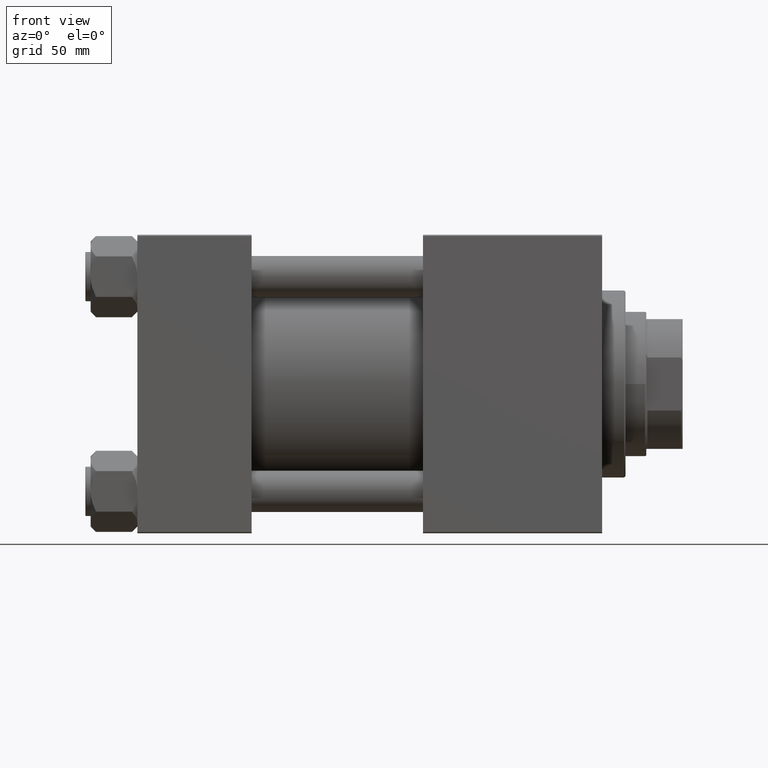
[diagram: clean part render]
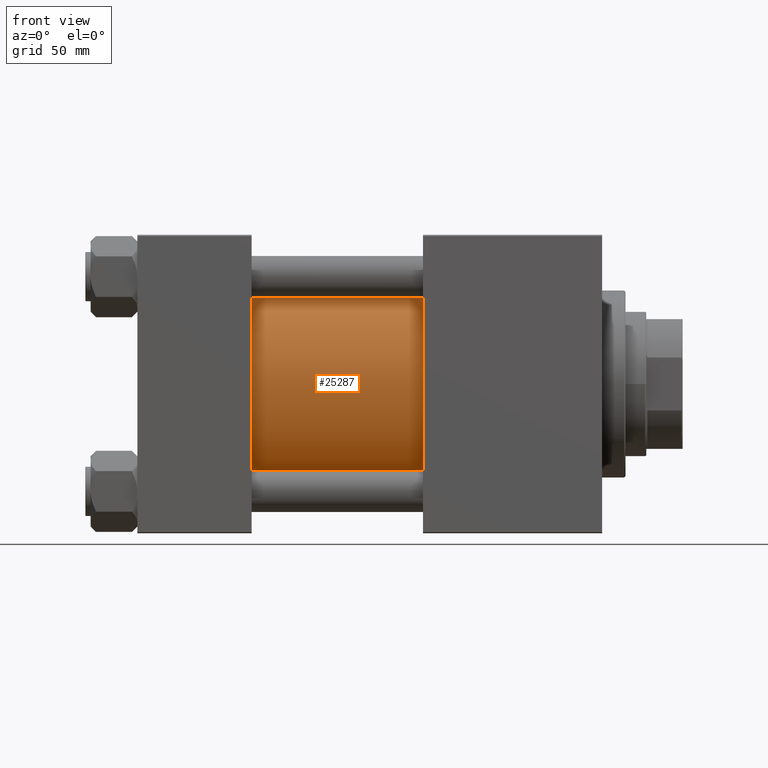
[diagram: same view with one face highlighted and labeled with its STEP entity id]
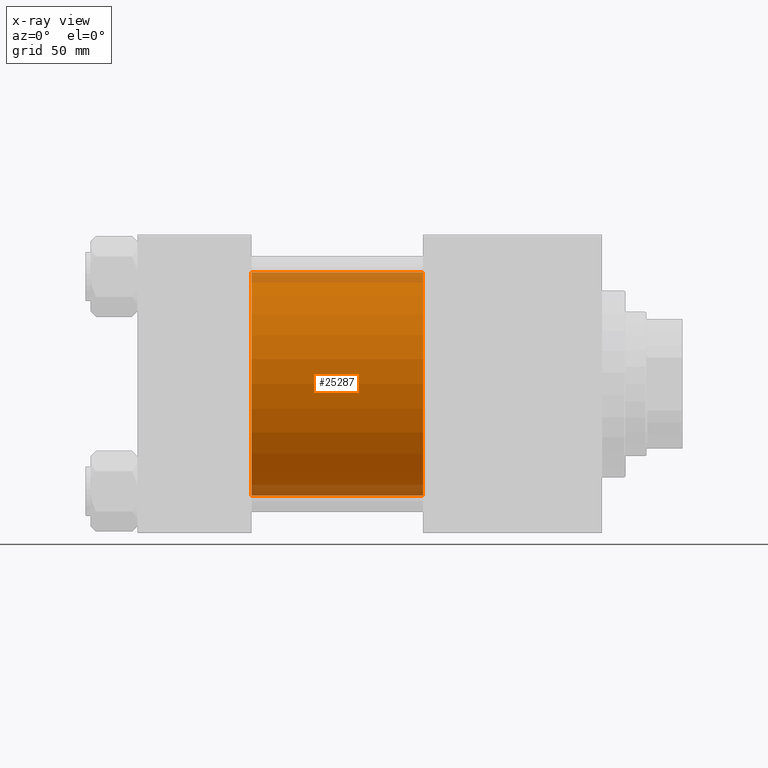
[diagram: x-ray of the same camera — body ghosted, the highlighted face saturated]
A machine part, front view. The second image highlights one B-rep face of the part: STEP entity #25287.
The next image is the same camera in x-ray: the body ghosted, the highlighted face saturated — about 9% of this face is hidden behind the body in this view.
In plain terms, the highlighted cylindrical surface (partial cylindrical patch) has radius 43 mm, axis along (-1, -0, -0).
Its self-contained STEP definition (entity closure, byte-faithful):
#463 = VECTOR ( 'NONE', #21333, 1000.000000000000000 ) ;
#1511 = FACE_OUTER_BOUND ( 'NONE', #27128, .T. ) ;
#2173 = CARTESIAN_POINT ( 'NONE',  ( 44.00000000000000000, -2.602085213965210642E-15, 0.000000000000000000 ) ) ;
#4994 = EDGE_CURVE ( 'NONE', #48497, #43066, #48688, .T. ) ;
#5921 = CARTESIAN_POINT ( 'NONE',  ( 110.0000000000000000, 2.663896022368408223E-15, -43.00000000000000000 ) ) ;
#6276 = CARTESIAN_POINT ( 'NONE',  ( 44.00000000000000000, -2.602085213965210642E-15, 43.00000000000000000 ) ) ;
#7281 = VERTEX_POINT ( 'NONE', #18743 ) ;
#7293 = CARTESIAN_POINT ( 'NONE',  ( 110.0000000000000000, -2.602085213965210642E-15, 43.00000000000000000 ) ) ;
#9436 = CYLINDRICAL_SURFACE ( 'NONE', #9522, 43.00000000000000000 ) ;
#9522 = AXIS2_PLACEMENT_3D ( 'NONE', #22010, #44779, #17144 ) ;
#9857 = DIRECTION ( 'NONE',  ( 1.000000000000000000, -0.000000000000000000, 0.000000000000000000 ) ) ;
#11079 = AXIS2_PLACEMENT_3D ( 'NONE', #2173, #9857, #41864 ) ;
#16137 = DIRECTION ( 'NONE',  ( 1.000000000000000000, 0.000000000000000000, 0.000000000000000000 ) ) ;
#16735 = ORIENTED_EDGE ( 'NONE', *, *, #35782, .F. ) ;
#17097 = CIRCLE ( 'NONE', #28540, 43.00000000000000000 ) ;
#17144 = DIRECTION ( 'NONE',  ( 0.000000000000000000, 0.000000000000000000, 1.000000000000000000 ) ) ;
#17895 = ORIENTED_EDGE ( 'NONE', *, *, #33454, .T. ) ;
#18743 = CARTESIAN_POINT ( 'NONE',  ( 110.0000000000000000, -2.602085213965210642E-15, 43.00000000000000000 ) ) ;
#21245 = ORIENTED_EDGE ( 'NONE', *, *, #23444, .T. ) ;
#21333 = DIRECTION ( 'NONE',  ( -1.000000000000000000, -0.000000000000000000, -0.000000000000000000 ) ) ;
#22010 = CARTESIAN_POINT ( 'NONE',  ( 110.0000000000000000, -2.602085213965210642E-15, 0.000000000000000000 ) ) ;
#23194 = DIRECTION ( 'NONE',  ( -1.000000000000000000, -0.000000000000000000, -0.000000000000000000 ) ) ;
#23444 = EDGE_CURVE ( 'NONE', #31858, #43066, #42946, .T. ) ;
#25287 = ADVANCED_FACE ( 'NONE', ( #1511 ), #9436, .T. ) ;
#26018 = VECTOR ( 'NONE', #23194, 1000.000000000000000 ) ;
#27128 = EDGE_LOOP ( 'NONE', ( #49795, #16735, #17895, #21245 ) ) ;
#28540 = AXIS2_PLACEMENT_3D ( 'NONE', #44744, #16137, #44992 ) ;
#30703 = CARTESIAN_POINT ( 'NONE',  ( 44.00000000000000000, 2.663896022368408223E-15, -43.00000000000000000 ) ) ;
#31858 = VERTEX_POINT ( 'NONE', #6276 ) ;
#33454 = EDGE_CURVE ( 'NONE', #7281, #31858, #34471, .T. ) ;
#34471 = LINE ( 'NONE', #7293, #26018 ) ;
#35170 = CARTESIAN_POINT ( 'NONE',  ( 110.0000000000000000, 2.663896022368408223E-15, -43.00000000000000000 ) ) ;
#35782 = EDGE_CURVE ( 'NONE', #7281, #48497, #17097, .T. ) ;
#41864 = DIRECTION ( 'NONE',  ( 0.000000000000000000, 0.000000000000000000, 1.000000000000000000 ) ) ;
#42946 = CIRCLE ( 'NONE', #11079, 43.00000000000000000 ) ;
#43066 = VERTEX_POINT ( 'NONE', #30703 ) ;
#44744 = CARTESIAN_POINT ( 'NONE',  ( 110.0000000000000000, -2.602085213965210642E-15, 0.000000000000000000 ) ) ;
#44779 = DIRECTION ( 'NONE',  ( -1.000000000000000000, -0.000000000000000000, -0.000000000000000000 ) ) ;
#44992 = DIRECTION ( 'NONE',  ( 0.000000000000000000, 0.000000000000000000, -1.000000000000000000 ) ) ;
#48497 = VERTEX_POINT ( 'NONE', #35170 ) ;
#48688 = LINE ( 'NONE', #5921, #463 ) ;
#49795 = ORIENTED_EDGE ( 'NONE', *, *, #4994, .F. ) ;